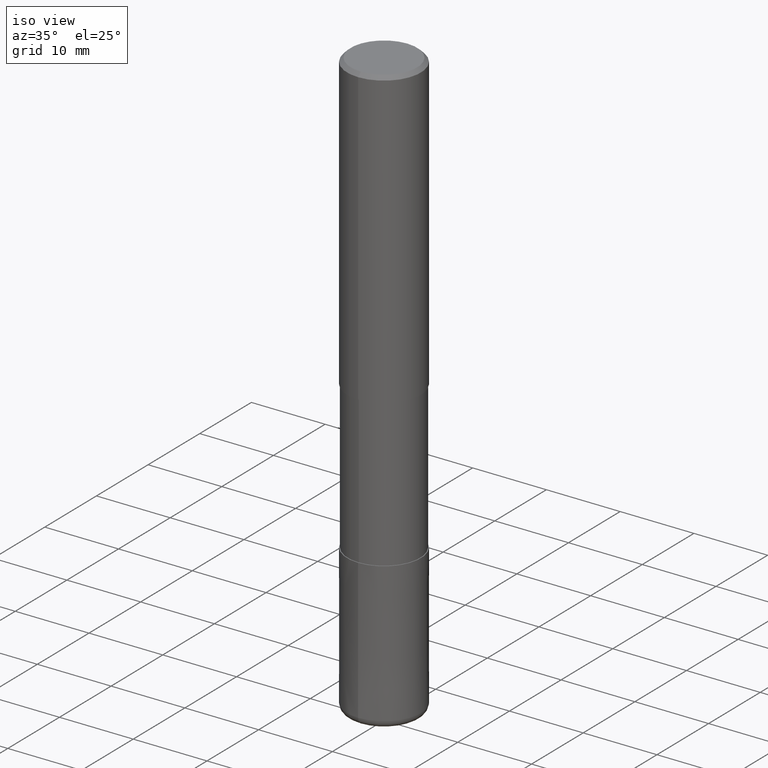
[diagram: clean part render]
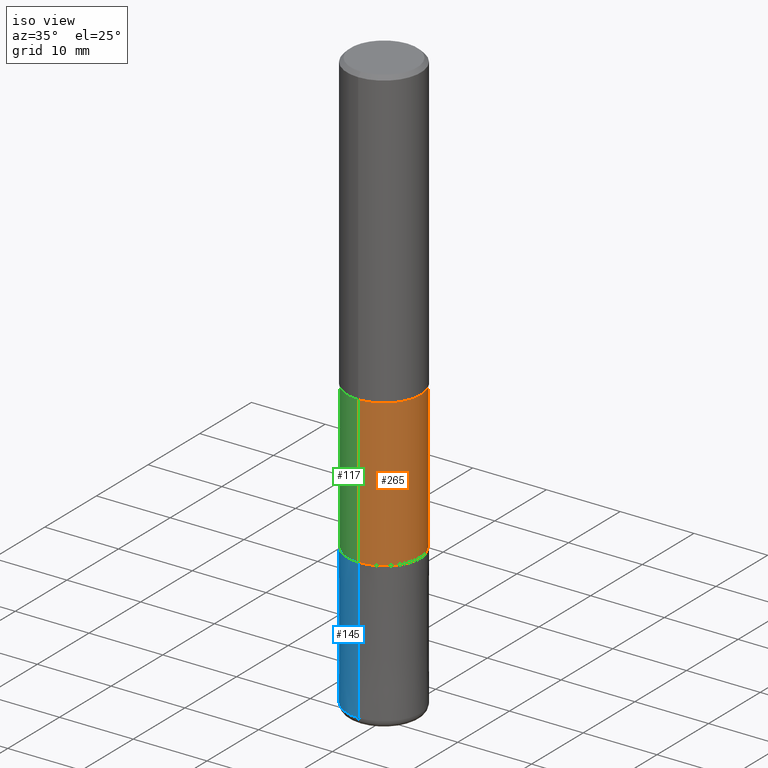
[diagram: same view with three faces highlighted in distinct colors, each labeled with its STEP entity id]
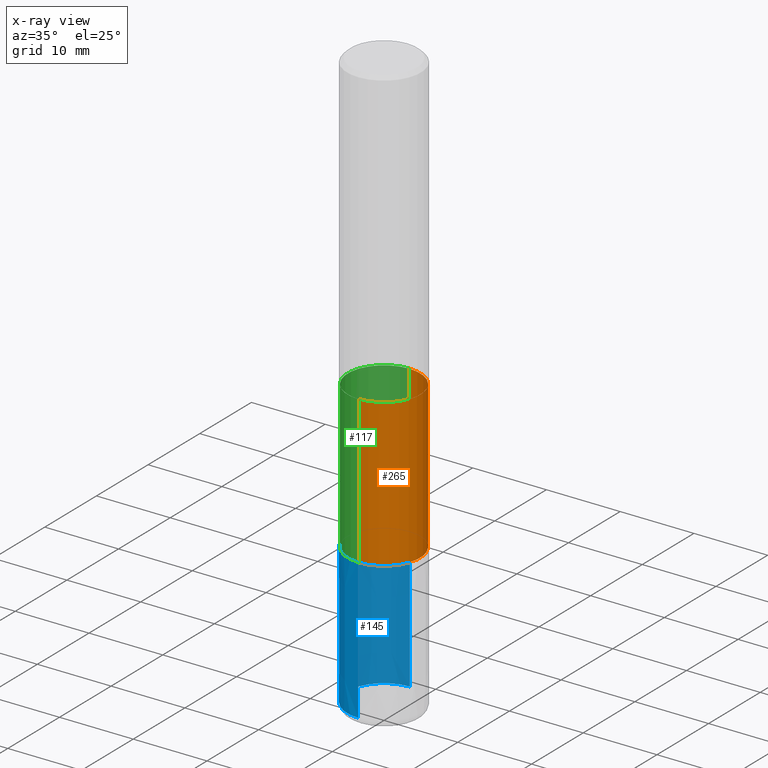
[diagram: x-ray of the same camera — body ghosted, the three highlighted faces saturated]
A machine part, iso view with three faces highlighted in distinct colors.
The next image is the same camera in x-ray (body ghosted, the three faces saturated) — at least one of them is partly hidden behind the body in this view.
Their STEP definitions:

[orange] entity #265 — the highlighted cylindrical surface (partial cylindrical patch) has radius 4.8999 mm, axis along (-0, -0, 1).
#151=VERTEX_POINT('',#344);
#201=EDGE_CURVE('',#219,#151,#398,.T.);
#211=EDGE_CURVE('',#269,#271,#410,.T.);
#219=VERTEX_POINT('',#419);
#239=EDGE_CURVE('',#151,#269,#441,.T.);
#243=EDGE_CURVE('',#219,#271,#445,.T.);
#265=ADVANCED_FACE('',(#474),#475,.T.);
#269=VERTEX_POINT('',#479);
#271=VERTEX_POINT('',#481);
#344=CARTESIAN_POINT('',(0.0,4.89995,-60.0));
#398=LINE('',#633,#634);
#410=LINE('',#647,#648);
#419=CARTESIAN_POINT('',(0.0,4.89995,-40.0));
#441=CIRCLE('',#684,4.89995);
#445=CIRCLE('',#691,4.89995);
#474=FACE_OUTER_BOUND('',#723,.T.);
#475=CYLINDRICAL_SURFACE('',#724,4.89995);
#479=CARTESIAN_POINT('',(6.00050990341196E-016,-4.89995,-60.0));
#481=CARTESIAN_POINT('',(6.00050990341196E-016,-4.89995,-40.0));
#633=CARTESIAN_POINT('',(-6.00050990341196E-016,4.89995,-50.0));
#634=VECTOR('',#866,1.0);
#647=CARTESIAN_POINT('',(6.00050990341196E-016,-4.89995,-50.0));
#648=VECTOR('',#883,1.0);
#684=AXIS2_PLACEMENT_3D('',#918,#919,#920);
#691=AXIS2_PLACEMENT_3D('',#922,#923,#924);
#723=EDGE_LOOP('',(#970,#971,#972,#973));
#724=AXIS2_PLACEMENT_3D('',#974,#975,#976);
#866=DIRECTION('',(0.0,0.0,-1.0));
#883=DIRECTION('',(-0.0,-0.0,1.0));
#918=CARTESIAN_POINT('',(0.0,0.0,-60.0));
#919=DIRECTION('',(0.0,0.0,-1.0));
#920=DIRECTION('',(0.0,1.0,0.0));
#922=CARTESIAN_POINT('',(0.0,0.0,-40.0));
#923=DIRECTION('',(0.0,0.0,-1.0));
#924=DIRECTION('',(0.0,1.0,0.0));
#970=ORIENTED_EDGE('',*,*,#201,.F.);
#971=ORIENTED_EDGE('',*,*,#243,.T.);
#972=ORIENTED_EDGE('',*,*,#211,.F.);
#973=ORIENTED_EDGE('',*,*,#239,.F.);
#974=CARTESIAN_POINT('',(0.0,0.0,-50.0));
#975=DIRECTION('',(-0.0,-0.0,1.0));
#976=DIRECTION('',(0.0,1.0,0.0));

[blue] entity #145 — the highlighted conical surface has half-angle 0 deg.
#119=VERTEX_POINT('',#307);
#121=EDGE_CURVE('',#119,#165,#309,.T.);
#141=EDGE_CURVE('',#155,#231,#331,.T.);
#145=ADVANCED_FACE('',(#337),#338,.T.);
#155=VERTEX_POINT('',#348);
#165=VERTEX_POINT('',#358);
#181=EDGE_CURVE('',#155,#119,#376,.T.);
#191=EDGE_CURVE('',#165,#231,#388,.T.);
#231=VERTEX_POINT('',#432);
#307=CARTESIAN_POINT('',(6.1229093084765E-016,-4.9999,-60.0));
#309=CIRCLE('',#513,4.9999);
#331=CIRCLE('',#541,5.0);
#337=FACE_OUTER_BOUND('',#547,.T.);
#338=CONICAL_SURFACE('',#548,4.99995,5.26315789467598E-006);
#348=CARTESIAN_POINT('',(6.12303176911188E-016,-5.0,-79.0));
#358=CARTESIAN_POINT('',(0.0,4.9999,-60.0));
#376=LINE('',#599,#600);
#388=LINE('',#614,#615);
#432=CARTESIAN_POINT('',(0.0,5.0,-79.0));
#513=AXIS2_PLACEMENT_3D('',#755,#756,#757);
#541=AXIS2_PLACEMENT_3D('',#784,#785,#786);
#547=EDGE_LOOP('',(#796,#797,#798,#799));
#548=AXIS2_PLACEMENT_3D('',#800,#801,#802);
#599=CARTESIAN_POINT('',(6.12297053879419E-016,-4.99995,-69.5));
#600=VECTOR('',#843,1.0);
#614=CARTESIAN_POINT('',(-6.12297053879419E-016,4.99995,-69.5));
#615=VECTOR('',#859,1.0);
#755=CARTESIAN_POINT('',(0.0,0.0,-60.0));
#756=DIRECTION('',(0.0,0.0,-1.0));
#757=DIRECTION('',(0.0,1.0,0.0));
#784=CARTESIAN_POINT('',(0.0,0.0,-79.0));
#785=DIRECTION('',(0.0,0.0,-1.0));
#786=DIRECTION('',(0.0,1.0,0.0));
#796=ORIENTED_EDGE('',*,*,#191,.T.);
#797=ORIENTED_EDGE('',*,*,#141,.F.);
#798=ORIENTED_EDGE('',*,*,#181,.T.);
#799=ORIENTED_EDGE('',*,*,#121,.T.);
#800=CARTESIAN_POINT('',(0.0,0.0,-69.5));
#801=DIRECTION('',(0.0,-0.0,-1.0));
#802=DIRECTION('',(0.0,1.0,0.0));
#843=DIRECTION('',(-6.44529659896085E-022,5.26315789465168E-006,0.99999999998615));
#859=DIRECTION('',(-6.44529659896085E-022,5.26315789465168E-006,-0.99999999998615));

[green] entity #117 — the highlighted cylindrical surface (partial cylindrical patch) has radius 4.8999 mm, axis along (-0, -0, 1).
#117=ADVANCED_FACE('',(#304),#305,.T.);
#131=EDGE_CURVE('',#271,#219,#320,.T.);
#151=VERTEX_POINT('',#344);
#201=EDGE_CURVE('',#219,#151,#398,.T.);
#211=EDGE_CURVE('',#269,#271,#410,.T.);
#219=VERTEX_POINT('',#419);
#269=VERTEX_POINT('',#479);
#271=VERTEX_POINT('',#481);
#275=EDGE_CURVE('',#269,#151,#485,.T.);
#304=FACE_OUTER_BOUND('',#507,.T.);
#305=CYLINDRICAL_SURFACE('',#508,4.89995);
#320=CIRCLE('',#529,4.89995);
#344=CARTESIAN_POINT('',(0.0,4.89995,-60.0));
#398=LINE('',#633,#634);
#410=LINE('',#647,#648);
#419=CARTESIAN_POINT('',(0.0,4.89995,-40.0));
#479=CARTESIAN_POINT('',(6.00050990341196E-016,-4.89995,-60.0));
#481=CARTESIAN_POINT('',(6.00050990341196E-016,-4.89995,-40.0));
#485=CIRCLE('',#736,4.89995);
#507=EDGE_LOOP('',(#748,#749,#750,#751));
#508=AXIS2_PLACEMENT_3D('',#752,#753,#754);
#529=AXIS2_PLACEMENT_3D('',#773,#774,#775);
#633=CARTESIAN_POINT('',(-6.00050990341196E-016,4.89995,-50.0));
#634=VECTOR('',#866,1.0);
#647=CARTESIAN_POINT('',(6.00050990341196E-016,-4.89995,-50.0));
#648=VECTOR('',#883,1.0);
#736=AXIS2_PLACEMENT_3D('',#980,#981,#982);
#748=ORIENTED_EDGE('',*,*,#201,.T.);
#749=ORIENTED_EDGE('',*,*,#275,.F.);
#750=ORIENTED_EDGE('',*,*,#211,.T.);
#751=ORIENTED_EDGE('',*,*,#131,.T.);
#752=CARTESIAN_POINT('',(0.0,0.0,-50.0));
#753=DIRECTION('',(-0.0,-0.0,1.0));
#754=DIRECTION('',(0.0,1.0,0.0));
#773=CARTESIAN_POINT('',(0.0,0.0,-40.0));
#774=DIRECTION('',(0.0,0.0,-1.0));
#775=DIRECTION('',(0.0,1.0,0.0));
#866=DIRECTION('',(0.0,0.0,-1.0));
#883=DIRECTION('',(-0.0,-0.0,1.0));
#980=CARTESIAN_POINT('',(0.0,0.0,-60.0));
#981=DIRECTION('',(0.0,0.0,-1.0));
#982=DIRECTION('',(0.0,1.0,0.0));